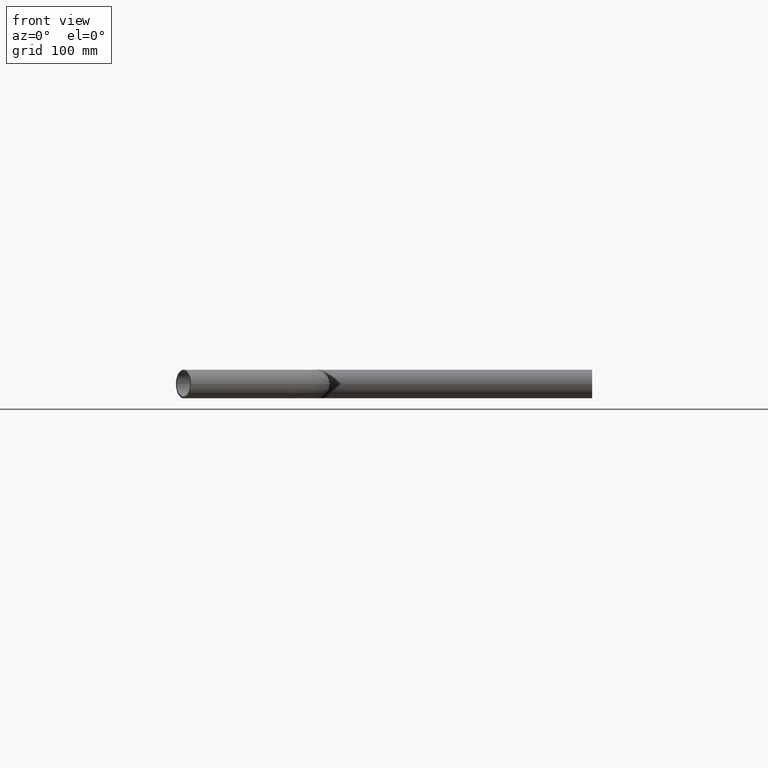
[diagram: clean part render]
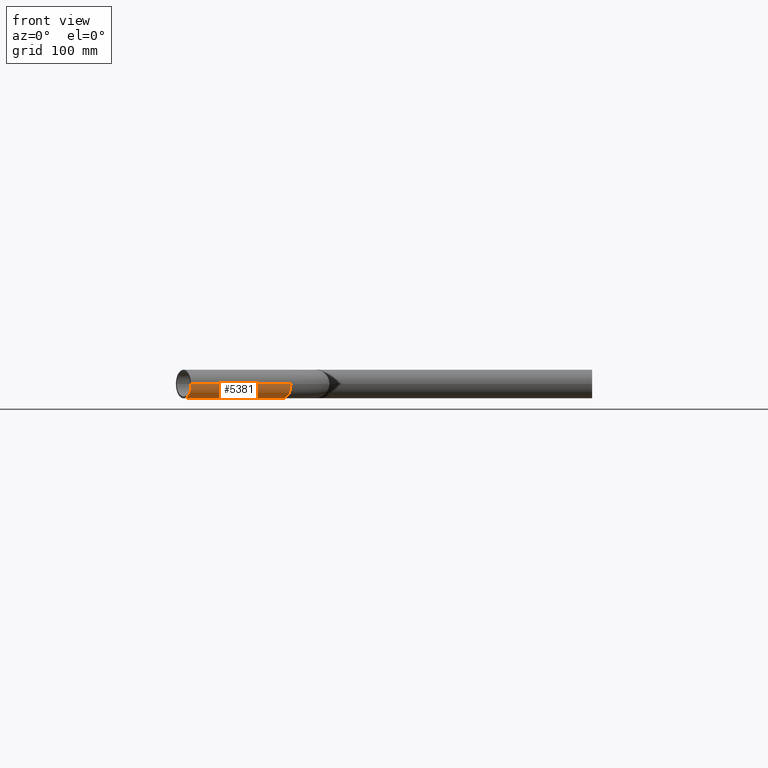
[diagram: same view with one face highlighted and labeled with its STEP entity id]
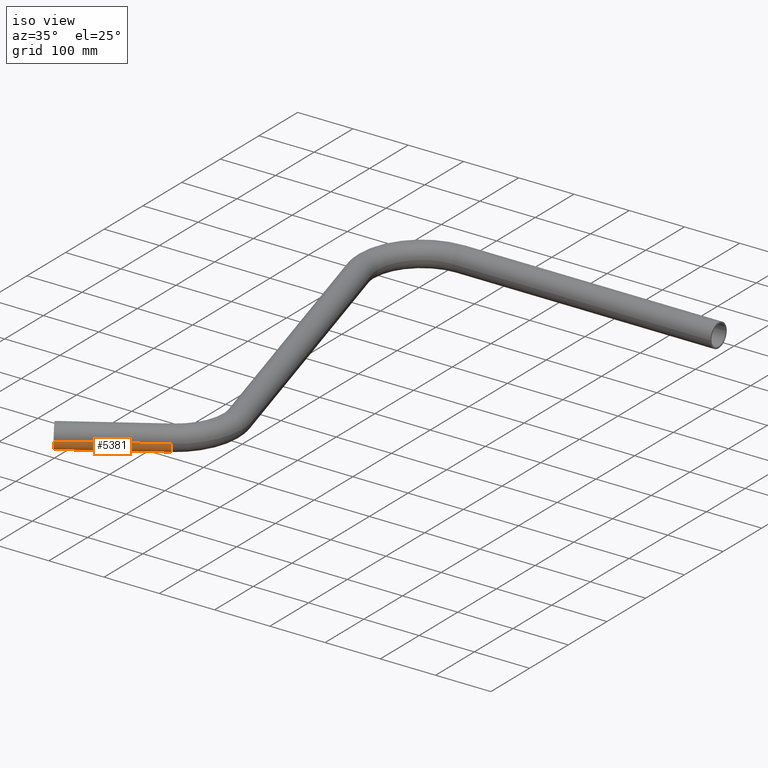
[diagram: same view with one face highlighted and labeled with its STEP entity id]
A machine part, front view. The second image highlights one B-rep face of the part: STEP entity #5381.
A second angle (iso view) of the same face is appended — the face is thin or edge-on in the first view.
In plain terms, the highlighted cylindrical surface (edge-blend (fillet) strip) has radius 21.2 mm, axis along (-0.848, -0.5299, -0).
Its self-contained STEP definition (entity closure, byte-faithful):
#21 = ORIENTED_EDGE ( 'NONE', *, *, #1994, .T. ) ;
#201 = DIRECTION ( 'NONE',  ( -0.8480480961563796600, -0.5299192642332791700, -0.0000000000000000000 ) ) ;
#639 = AXIS2_PLACEMENT_3D ( 'NONE', #3516, #10748, #4574 ) ;
#650 = ORIENTED_EDGE ( 'NONE', *, *, #8756, .T. ) ;
#917 = AXIS2_PLACEMENT_3D ( 'NONE', #5599, #12831, #6646 ) ;
#1241 = EDGE_CURVE ( 'NONE', #2740, #1973, #10161, .T. ) ;
#1973 = VERTEX_POINT ( 'NONE', #10220 ) ;
#1994 = EDGE_CURVE ( 'NONE', #13452, #4001, #8378, .T. ) ;
#2556 = FACE_OUTER_BOUND ( 'NONE', #4518, .T. ) ;
#2648 = VECTOR ( 'NONE', #201, 999.9999999999998900 ) ;
#2740 = VERTEX_POINT ( 'NONE', #7142 ) ;
#3078 = VECTOR ( 'NONE', #10115, 999.9999999999998900 ) ;
#3516 = CARTESIAN_POINT ( 'NONE',  ( 0.0000000000000000000, 0.0000000000000000000, 0.0000000000000000000 ) ) ;
#4001 = VERTEX_POINT ( 'NONE', #11603 ) ;
#4518 = EDGE_LOOP ( 'NONE', ( #10376, #4684, #650, #21 ) ) ;
#4574 = DIRECTION ( 'NONE',  ( -0.5299192642332822800, 0.8480480961563776600, 0.0000000000000000000 ) ) ;
#4684 = ORIENTED_EDGE ( 'NONE', *, *, #1241, .F. ) ;
#4936 = AXIS2_PLACEMENT_3D ( 'NONE', #5354, #12564, #6379 ) ;
#5354 = CARTESIAN_POINT ( 'NONE',  ( 148.1070162850266500, 92.54753527926683900, 0.0000000000000000000 ) ) ;
#5381 = ADVANCED_FACE ( 'NONE', ( #2556 ), #9521, .T. ) ;
#5599 = CARTESIAN_POINT ( 'NONE',  ( 148.1070162850268200, 92.54753527926693800, 0.0000000000000000000 ) ) ;
#6379 = DIRECTION ( 'NONE',  ( 0.5299192642332789500, -0.8480480961563797700, 0.0000000000000000000 ) ) ;
#6646 = DIRECTION ( 'NONE',  ( 0.5299192642332706300, -0.8480480961563848800, 0.0000000000000000000 ) ) ;
#7142 = CARTESIAN_POINT ( 'NONE',  ( 159.3413046867721600, 74.56891564075159800, 0.0000000000000000000 ) ) ;
#7206 = CARTESIAN_POINT ( 'NONE',  ( 11.23428840174556200, -17.97861963851521200, 0.0000000000000000000 ) ) ;
#7826 = LINE ( 'NONE', #12723, #2648 ) ;
#8378 = CIRCLE ( 'NONE', #639, 21.20000000000000600 ) ;
#8594 = LINE ( 'NONE', #9090, #3078 ) ;
#8756 = EDGE_CURVE ( 'NONE', #2740, #13452, #8594, .T. ) ;
#9090 = CARTESIAN_POINT ( 'NONE',  ( 159.3413046867721600, 74.56891564075159800, 0.0000000000000000000 ) ) ;
#9521 = CYLINDRICAL_SURFACE ( 'NONE', #4936, 21.19999999999998900 ) ;
#10115 = DIRECTION ( 'NONE',  ( -0.8480480961563796600, -0.5299192642332791700, -0.0000000000000000000 ) ) ;
#10161 = CIRCLE ( 'NONE', #917, 21.20000000000000600 ) ;
#10220 = CARTESIAN_POINT ( 'NONE',  ( 136.8727278832814700, 110.5261549177822900, 2.596251214192389200E-015 ) ) ;
#10376 = ORIENTED_EDGE ( 'NONE', *, *, #11856, .F. ) ;
#10748 = DIRECTION ( 'NONE',  ( 0.8480480961563777700, 0.5299192642332822800, -3.826221258505972300E-017 ) ) ;
#11603 = CARTESIAN_POINT ( 'NONE',  ( -11.23428840174559100, 17.97861963851518800, 2.596251214192389200E-015 ) ) ;
#11856 = EDGE_CURVE ( 'NONE', #1973, #4001, #7826, .T. ) ;
#12564 = DIRECTION ( 'NONE',  ( -0.8480480961563795500, -0.5299192642332791700, -0.0000000000000000000 ) ) ;
#12723 = CARTESIAN_POINT ( 'NONE',  ( 136.8727278832811300, 110.5261549177820900, 2.596251214192389200E-015 ) ) ;
#12831 = DIRECTION ( 'NONE',  ( 0.8480480961563847700, 0.5299192642332709600, -0.0000000000000000000 ) ) ;
#13452 = VERTEX_POINT ( 'NONE', #7206 ) ;